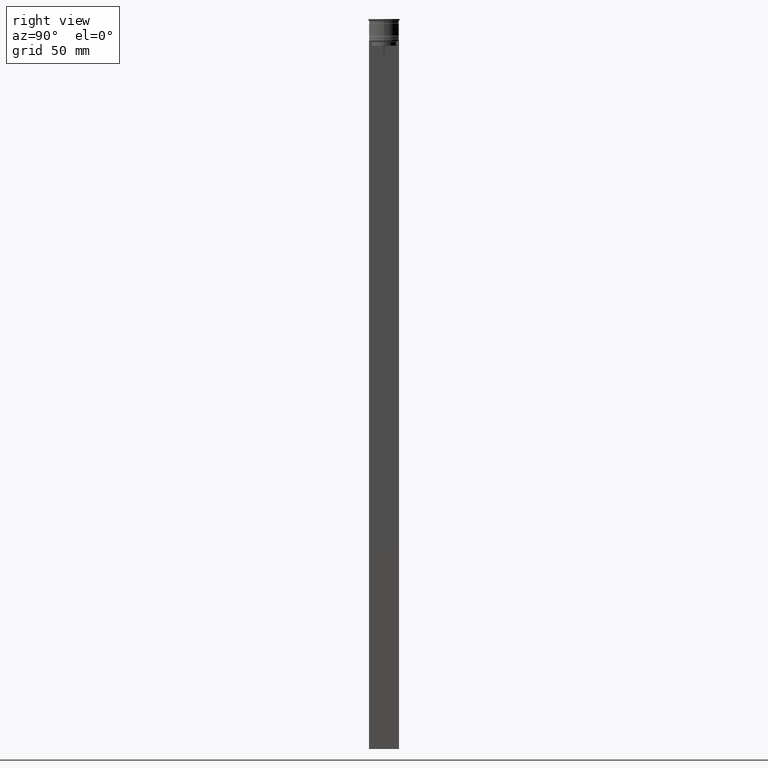
[diagram: clean part render]
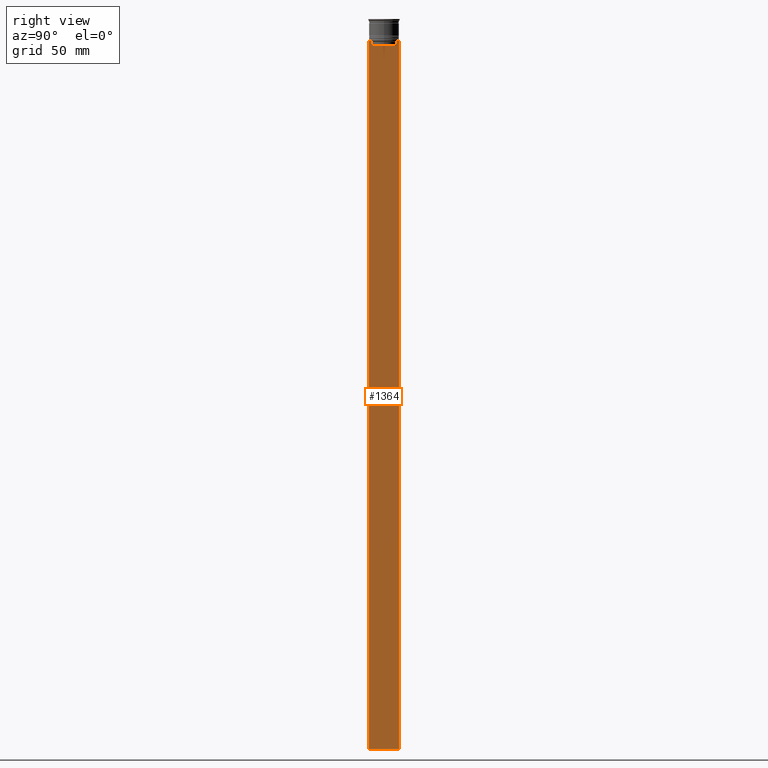
[diagram: same view with one face highlighted and labeled with its STEP entity id]
A machine part, right view. The second image highlights one B-rep face of the part: STEP entity #1364.
In plain terms, the highlighted planar face has unit normal (-1, 0, 0).
Its self-contained STEP definition (entity closure, byte-faithful):
#7 = DIRECTION ( 'NONE',  ( -0.000000000000000000, -0.000000000000000000, 1.000000000000000000 ) ) ;
#15 = VECTOR ( 'NONE', #1230, 1000.000000000000000 ) ;
#40 = ORIENTED_EDGE ( 'NONE', *, *, #326, .T. ) ;
#90 = VERTEX_POINT ( 'NONE', #136 ) ;
#93 = VECTOR ( 'NONE', #1093, 1000.000000000000000 ) ;
#102 = LINE ( 'NONE', #2565, #1599 ) ;
#136 = CARTESIAN_POINT ( 'NONE',  ( 0.5000000000000000000, -9.500000000000001776, -464.0000000000000000 ) ) ;
#182 = DIRECTION ( 'NONE',  ( 0.000000000000000000, -1.000000000000000000, 0.000000000000000000 ) ) ;
#222 = CARTESIAN_POINT ( 'NONE',  ( 0.5000000000000000000, -8.218133703942523738, -14.16667607853445787 ) ) ;
#307 = EDGE_CURVE ( 'NONE', #2248, #1743, #1958, .T. ) ;
#319 = LINE ( 'NONE', #331, #385 ) ;
#326 = EDGE_CURVE ( 'NONE', #1331, #2100, #319, .T. ) ;
#331 = CARTESIAN_POINT ( 'NONE',  ( 0.5000000000000000000, -9.500000000000001776, -14.00000000000000178 ) ) ;
#348 = ORIENTED_EDGE ( 'NONE', *, *, #926, .T. ) ;
#385 = VECTOR ( 'NONE', #1758, 1000.000000000000000 ) ;
#397 = CARTESIAN_POINT ( 'NONE',  ( 0.5000000000000000000, -9.386692708297204035, -14.00000000000000178 ) ) ;
#398 = CARTESIAN_POINT ( 'NONE',  ( 0.5000000000000000000, 7.884161337770803080, 0.000000000000000000 ) ) ;
#481 = EDGE_LOOP ( 'NONE', ( #2463, #2243, #579, #973, #2143, #348, #40, #897, #1619, #1452, #2103, #2054 ) ) ;
#567 = VECTOR ( 'NONE', #7, 1000.000000000000000 ) ;
#579 = ORIENTED_EDGE ( 'NONE', *, *, #1268, .T. ) ;
#590 = CARTESIAN_POINT ( 'NONE',  ( 0.5000000000000000000, -8.051152795888546265, -14.33334334204685057 ) ) ;
#612 = LINE ( 'NONE', #626, #2475 ) ;
#626 = CARTESIAN_POINT ( 'NONE',  ( 0.5000000000000000000, 7.899999999999994138, -17.00000000000000000 ) ) ;
#628 = DIRECTION ( 'NONE',  ( 0.000000000000000000, 0.000000000000000000, 1.000000000000000000 ) ) ;
#775 = CARTESIAN_POINT ( 'NONE',  ( 0.5000000000000000000, -7.884161337770803080, -17.00000000000000000 ) ) ;
#789 = VECTOR ( 'NONE', #2080, 1000.000000000000000 ) ;
#808 = VERTEX_POINT ( 'NONE', #2598 ) ;
#821 = CARTESIAN_POINT ( 'NONE',  ( 0.5000000000000000000, -7.884161337770803080, 0.000000000000000000 ) ) ;
#842 = CARTESIAN_POINT ( 'NONE',  ( 0.5000000000000000000, 7.884161337770803080, -17.00000000000000000 ) ) ;
#862 = CARTESIAN_POINT ( 'NONE',  ( 0.5000000000000000000, -9.500000000000001776, -14.00000000000000178 ) ) ;
#882 = CARTESIAN_POINT ( 'NONE',  ( 0.5000000000000000000, 9.499999999999998224, -14.00000000000000178 ) ) ;
#897 = ORIENTED_EDGE ( 'NONE', *, *, #1804, .T. ) ;
#900 = DIRECTION ( 'NONE',  ( 0.000000000000000000, 1.000000000000000000, 0.000000000000000000 ) ) ;
#917 = LINE ( 'NONE', #2562, #93 ) ;
#926 = EDGE_CURVE ( 'NONE', #1661, #1331, #2090, .T. ) ;
#946 = CARTESIAN_POINT ( 'NONE',  ( 0.5000000000000000000, 8.051152811434374001, -14.33334332653219079 ) ) ;
#952 = VERTEX_POINT ( 'NONE', #882 ) ;
#964 = EDGE_CURVE ( 'NONE', #988, #2248, #102, .T. ) ;
#973 = ORIENTED_EDGE ( 'NONE', *, *, #1761, .T. ) ;
#988 = VERTEX_POINT ( 'NONE', #2183 ) ;
#1030 = LINE ( 'NONE', #1637, #1309 ) ;
#1093 = DIRECTION ( 'NONE',  ( 0.000000000000000000, -1.000000000000000000, 0.000000000000000000 ) ) ;
#1207 = VERTEX_POINT ( 'NONE', #775 ) ;
#1230 = DIRECTION ( 'NONE',  ( 0.000000000000000000, -1.000000000000000000, 0.000000000000000000 ) ) ;
#1268 = EDGE_CURVE ( 'NONE', #1743, #1276, #2295, .T. ) ;
#1276 = VERTEX_POINT ( 'NONE', #842 ) ;
#1282 = PLANE ( 'NONE',  #1645 ) ;
#1309 = VECTOR ( 'NONE', #1847, 1000.000000000000000 ) ;
#1331 = VERTEX_POINT ( 'NONE', #1450 ) ;
#1338 = DIRECTION ( 'NONE',  ( 0.000000000000000000, -1.000000000000000000, 0.000000000000000000 ) ) ;
#1364 = ADVANCED_FACE ( 'NONE', ( #1483 ), #1282, .F. ) ;
#1393 = CARTESIAN_POINT ( 'NONE',  ( 0.5000000000000000000, 8.218133718559618828, -14.16667606394327983 ) ) ;
#1401 = VECTOR ( 'NONE', #1871, 1000.000000000000000 ) ;
#1450 = CARTESIAN_POINT ( 'NONE',  ( 0.5000000000000000000, -8.385105843100605583, -14.00000000000000178 ) ) ;
#1452 = ORIENTED_EDGE ( 'NONE', *, *, #1888, .T. ) ;
#1479 = CARTESIAN_POINT ( 'NONE',  ( 0.5000000000000000000, 9.499999999999998224, 5.026297590440445440 ) ) ;
#1483 = FACE_OUTER_BOUND ( 'NONE', #481, .T. ) ;
#1488 = EDGE_CURVE ( 'NONE', #952, #988, #917, .T. ) ;
#1595 = CARTESIAN_POINT ( 'NONE',  ( 0.5000000000000000000, 8.385105843100605583, -14.00000000000000178 ) ) ;
#1599 = VECTOR ( 'NONE', #1338, 1000.000000000000000 ) ;
#1618 = CARTESIAN_POINT ( 'NONE',  ( 0.5000000000000000000, -8.385105843100605583, -14.00000000000000178 ) ) ;
#1619 = ORIENTED_EDGE ( 'NONE', *, *, #2000, .T. ) ;
#1637 = CARTESIAN_POINT ( 'NONE',  ( 0.5000000000000000000, -9.500000000000001776, 5.026297590440445440 ) ) ;
#1645 = AXIS2_PLACEMENT_3D ( 'NONE', #2486, #2107, #628 ) ;
#1661 = VERTEX_POINT ( 'NONE', #2603 ) ;
#1672 = CARTESIAN_POINT ( 'NONE',  ( 0.5000000000000000000, -7.884161337770803080, -14.50000000000000000 ) ) ;
#1682 = EDGE_CURVE ( 'NONE', #952, #808, #2468, .T. ) ;
#1691 = CARTESIAN_POINT ( 'NONE',  ( 0.5000000000000000000, -9.500000000000001776, -464.0000000000000000 ) ) ;
#1743 = VERTEX_POINT ( 'NONE', #2308 ) ;
#1758 = DIRECTION ( 'NONE',  ( 0.000000000000000000, -1.000000000000000000, 0.000000000000000000 ) ) ;
#1761 = EDGE_CURVE ( 'NONE', #1276, #1207, #612, .T. ) ;
#1804 = EDGE_CURVE ( 'NONE', #2100, #1988, #2075, .T. ) ;
#1831 = EDGE_CURVE ( 'NONE', #1207, #1661, #1845, .T. ) ;
#1845 = LINE ( 'NONE', #821, #567 ) ;
#1847 = DIRECTION ( 'NONE',  ( 0.000000000000000000, 0.000000000000000000, -1.000000000000000000 ) ) ;
#1871 = DIRECTION ( 'NONE',  ( 0.000000000000000000, 0.000000000000000000, -1.000000000000000000 ) ) ;
#1888 = EDGE_CURVE ( 'NONE', #90, #808, #2569, .T. ) ;
#1958 = B_SPLINE_CURVE_WITH_KNOTS ( 'NONE', 3,
 ( #1595, #1393, #946, #2228 ),
 .UNSPECIFIED., .F., .F.,
 ( 4, 4 ),
 ( 0.01426761478740281447, 0.01497538974438914448 ),
 .UNSPECIFIED. ) ;
#1988 = VERTEX_POINT ( 'NONE', #2496 ) ;
#2000 = EDGE_CURVE ( 'NONE', #1988, #90, #1030, .T. ) ;
#2054 = ORIENTED_EDGE ( 'NONE', *, *, #1488, .T. ) ;
#2075 = LINE ( 'NONE', #862, #15 ) ;
#2080 = DIRECTION ( 'NONE',  ( 0.000000000000000000, 0.000000000000000000, -1.000000000000000000 ) ) ;
#2090 = B_SPLINE_CURVE_WITH_KNOTS ( 'NONE', 3,
 ( #1672, #590, #222, #1618 ),
 .UNSPECIFIED., .F., .F.,
 ( 4, 4 ),
 ( 0.03673372442973153046, 0.03744389749832059688 ),
 .UNSPECIFIED. ) ;
#2100 = VERTEX_POINT ( 'NONE', #397 ) ;
#2103 = ORIENTED_EDGE ( 'NONE', *, *, #1682, .F. ) ;
#2107 = DIRECTION ( 'NONE',  ( -1.000000000000000000, 0.000000000000000000, 0.000000000000000000 ) ) ;
#2110 = CARTESIAN_POINT ( 'NONE',  ( 0.5000000000000000000, 8.385105843100605583, -14.00000000000000178 ) ) ;
#2143 = ORIENTED_EDGE ( 'NONE', *, *, #1831, .T. ) ;
#2183 = CARTESIAN_POINT ( 'NONE',  ( 0.5000000000000000000, 9.386692708297204035, -14.00000000000000178 ) ) ;
#2228 = CARTESIAN_POINT ( 'NONE',  ( 0.5000000000000000000, 7.884161337770803080, -14.50000000000000000 ) ) ;
#2243 = ORIENTED_EDGE ( 'NONE', *, *, #307, .T. ) ;
#2248 = VERTEX_POINT ( 'NONE', #2110 ) ;
#2295 = LINE ( 'NONE', #398, #789 ) ;
#2308 = CARTESIAN_POINT ( 'NONE',  ( 0.5000000000000000000, 7.884161337770803080, -14.50000000000000000 ) ) ;
#2342 = VECTOR ( 'NONE', #900, 1000.000000000000000 ) ;
#2463 = ORIENTED_EDGE ( 'NONE', *, *, #964, .T. ) ;
#2468 = LINE ( 'NONE', #1479, #1401 ) ;
#2475 = VECTOR ( 'NONE', #182, 1000.000000000000000 ) ;
#2486 = CARTESIAN_POINT ( 'NONE',  ( 0.5000000000000000000, -9.500000000000001776, 5.026297590440445440 ) ) ;
#2496 = CARTESIAN_POINT ( 'NONE',  ( 0.5000000000000000000, -9.500000000000001776, -14.00000000000000178 ) ) ;
#2562 = CARTESIAN_POINT ( 'NONE',  ( 0.5000000000000000000, -9.500000000000001776, -14.00000000000000178 ) ) ;
#2565 = CARTESIAN_POINT ( 'NONE',  ( 0.5000000000000000000, -9.500000000000001776, -14.00000000000000178 ) ) ;
#2569 = LINE ( 'NONE', #1691, #2342 ) ;
#2598 = CARTESIAN_POINT ( 'NONE',  ( 0.5000000000000000000, 9.499999999999998224, -464.0000000000000000 ) ) ;
#2603 = CARTESIAN_POINT ( 'NONE',  ( 0.5000000000000000000, -7.884161337770803080, -14.50000000000000000 ) ) ;